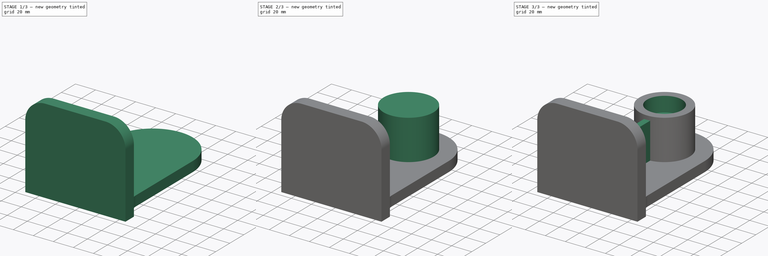
[diagram: build sequence overview — one tinted view per stage of 3, left to right]
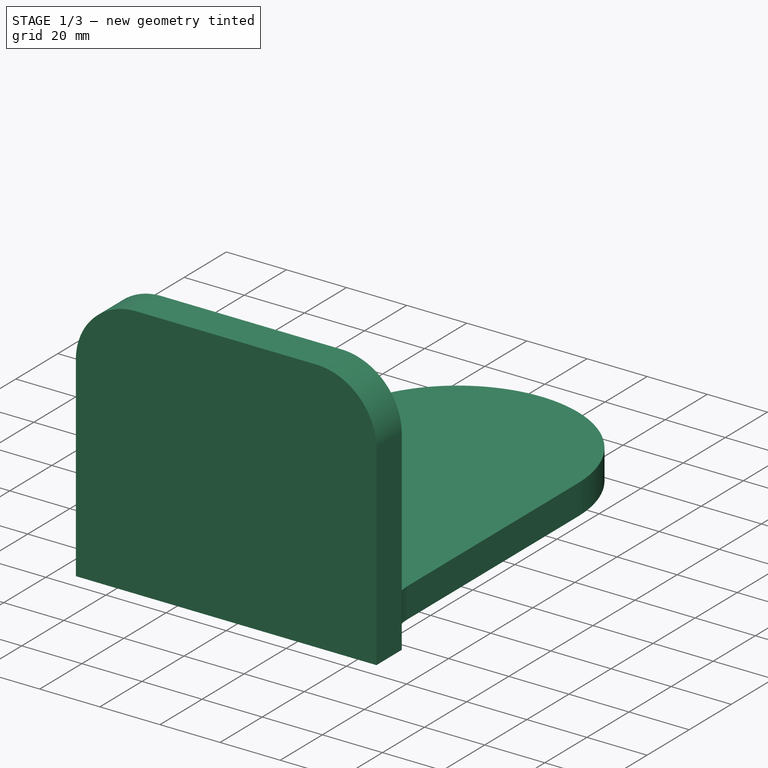
[diagram: stage 1 of 3 — iso view after this stage's code; geometry added in this stage tinted green]
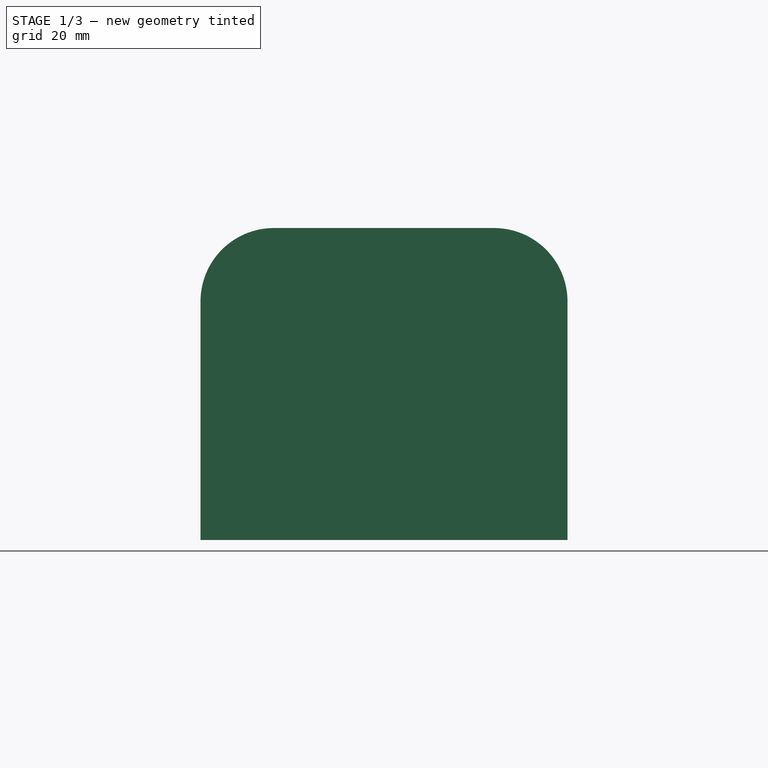
[diagram: stage 1 of 3 — front view after this stage's code; geometry added in this stage tinted green]
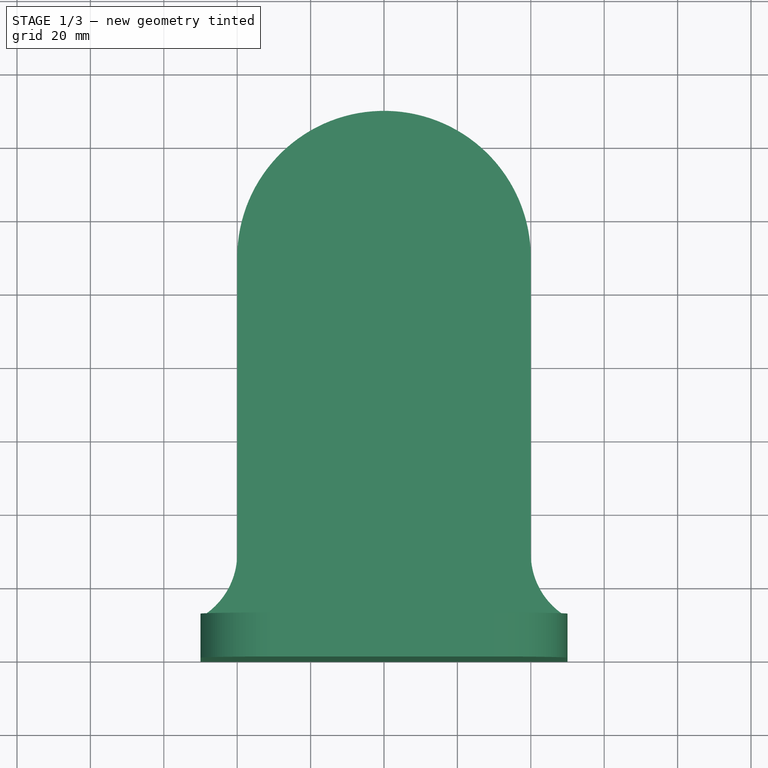
[diagram: stage 1 of 3 — top view after this stage's code; geometry added in this stage tinted green]
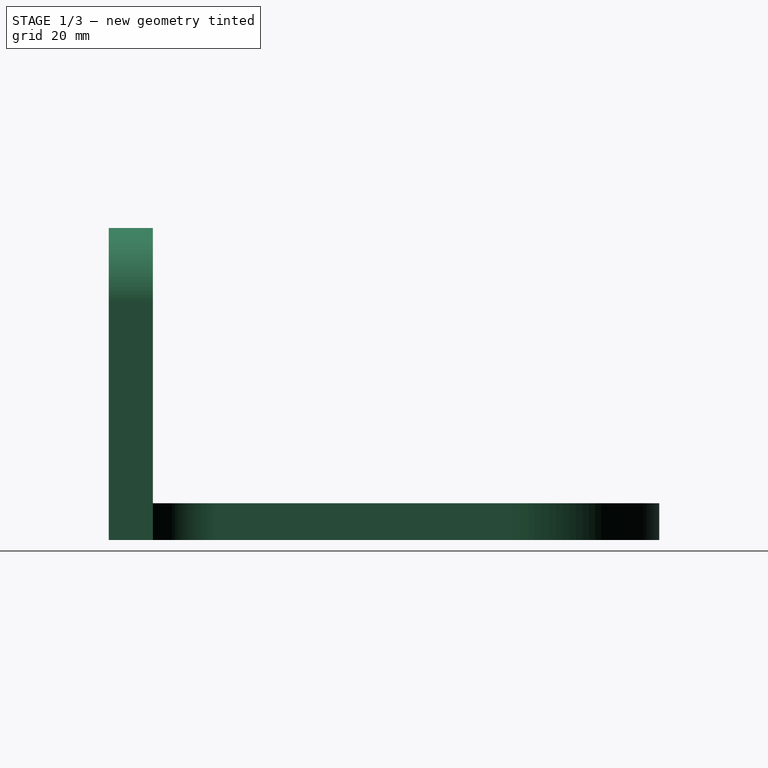
[diagram: stage 1 of 3 — right view after this stage's code; geometry added in this stage tinted green]
FCSTD DOCUMENT  (FreeCAD 1.1R42340 (Git))
Label: 22-T-53-TOMBSTONE_L
License: Creative Commons Attribution-NonCommercial-ShareAlike 4.0
LicenseURL: https://creativecommons.org/licenses/by-nc-sa/4.0/
objects: Sketcher::SketchObject×4, PartDesign::Pad×4, App::Point×1, PartDesign::Hole×1, PartDesign::Body×1, App::TextDocument×1
note: 24 computed .brp shape members not serialized (recipe doc carries the construction recipe); baked Part::Feature solids carry a one-line shape summary decoded from their .brp

FEATURE [App::Point] Origin001
  Role = Origin
FEATURE [Sketcher::SketchObject] Sketch
  ArcFitTolerance = 1e-06
  AttachmentSupport = -> [Origin]
  ExternalTypes = [0]
  FullyConstrained = true
  MakeInternals = false
  MapMode = 5
  sketch-geometry (9):
    g0: LineSegment StartX=-50 StartY=0 StartZ=0 EndX=50 EndY=0 EndZ=0
    g1: LineSegment StartX=50 StartY=0 StartZ=0 EndX=50 EndY=12 EndZ=0
    g2: LineSegment StartX=40 StartY=29.3205 StartZ=0 EndX=40 EndY=110 EndZ=0
    g3: ArcOfCircle CenterX=0 CenterY=110 CenterZ=0 NormalX=0 NormalY=0 NormalZ=1 AngleXU=0 Radius=40 StartAngle=0 EndAngle=3.14159
    g4: LineSegment StartX=-40 StartY=110 StartZ=0 EndX=-40 EndY=29.3205 EndZ=0
    g5: LineSegment StartX=-50 StartY=12 StartZ=0 EndX=-50 EndY=0 EndZ=0
    g6: GeomPoint X=0 Y=150 Z=0
    g7: ArcOfCircle CenterX=60 CenterY=29.3205 CenterZ=0 NormalX=0 NormalY=0 NormalZ=1 AngleXU=0 Radius=20 StartAngle=3.14159 EndAngle=4.18879
    g8: ArcOfCircle CenterX=-60 CenterY=29.3205 CenterZ=0 NormalX=0 NormalY=0 NormalZ=1 AngleXU=0 Radius=20 StartAngle=5.23599 EndAngle=6.28319
  constraints (25):
    c: PointOnObject(g0,g-1)
    c: PointOnObject(g0,g-1)
    c: Coincident(g0,g1)
    c: Vertical(g1)
    c: Vertical(g2)
    c: Tangent(g2,g3) = -1.5708
    c: Tangent(g3,g4) = -1.5708
    c: Coincident(g5,g0)
    c: Vertical(g5)
    c: Equal(g5,g1)
    c: Equal(g4,g2)
    c: Vertical(g4)
    c: PointOnObject(g3,g-2)
    c: Radius(g3) = 40
    c: PointOnObject(g6,g3)
    c: Distance(g6,g-1) = 150
    c: PointOnObject(g6,g-2)
    c: DistanceX(g0,g0) = 100
    c: Distance(g1,g1) = 12
    c: Coincident(g7,g1)
    c: Radius(g7) = 20
    c: Tangent(g7,g2) = 1.5708
    c: Coincident(g8,g5)
    c: Equal(g8,g7)
    c: Tangent(g8,g4) = 1.5708
FEATURE [PartDesign::Pad] Pad
  Direction = (0,0,1)
  Length = 10
  Length2 = 10
  Profile = -> Sketch
  ReferenceAxis = -> Sketch [N_Axis]
  Refine = true
  Suppressed = false
  Type = 0
FEATURE [Sketcher::SketchObject] Sketch001
  ArcFitTolerance = 1e-06
  AttachmentSupport = -> [Pad]
  ExternalGeometry = -> [Pad]
  ExternalTypes = [0]
  FullyConstrained = true
  MakeInternals = false
  MapMode = 5
  Placement = pos=(0,0,0) rot=(1,0,0;1.5708rad)
  sketch-geometry (5):
    g0: LineSegment StartX=-50 StartY=0 StartZ=0 EndX=-50 EndY=65 EndZ=0
    g1: ArcOfCircle CenterX=-30 CenterY=65 CenterZ=0 NormalX=0 NormalY=0 NormalZ=1 AngleXU=0 Radius=20 StartAngle=1.5708 EndAngle=3.14159
    g2: LineSegment StartX=-30 StartY=85 StartZ=0 EndX=30 EndY=85 EndZ=0
    g3: ArcOfCircle CenterX=30 CenterY=65 CenterZ=0 NormalX=0 NormalY=0 NormalZ=1 AngleXU=0 Radius=20 StartAngle=1e-16 EndAngle=1.5708
    g4: LineSegment StartX=50 StartY=65 StartZ=0 EndX=50 EndY=0 EndZ=0
  constraints (12):
    c: Coincident(g-3,g0)
    c: Vertical(g0)
    c: Tangent(g0,g1) = 1.5708
    c: Horizontal(g2)
    c: Tangent(g2,g3) = 1.5708
    c: Tangent(g3,g4) = 1.5708
    c: Equal(g1,g3)
    c: Radius(g3) = 20
    c: Vertical(g4)
    c: Coincident(g4,g-3)
    c: Tangent(g2,g1) = 1.5708
    c: DistanceY(g-1,g1) = 85
FEATURE [PartDesign::Pad] Pad001
  BaseFeature = -> Pad
  Direction = (0,-1,2e-16)
  Length = 12
  Length2 = 10
  Profile = -> Sketch001
  ReferenceAxis = -> Sketch001 [N_Axis]
  Refine = true
  Reversed = true
  Suppressed = false
  Type = 0
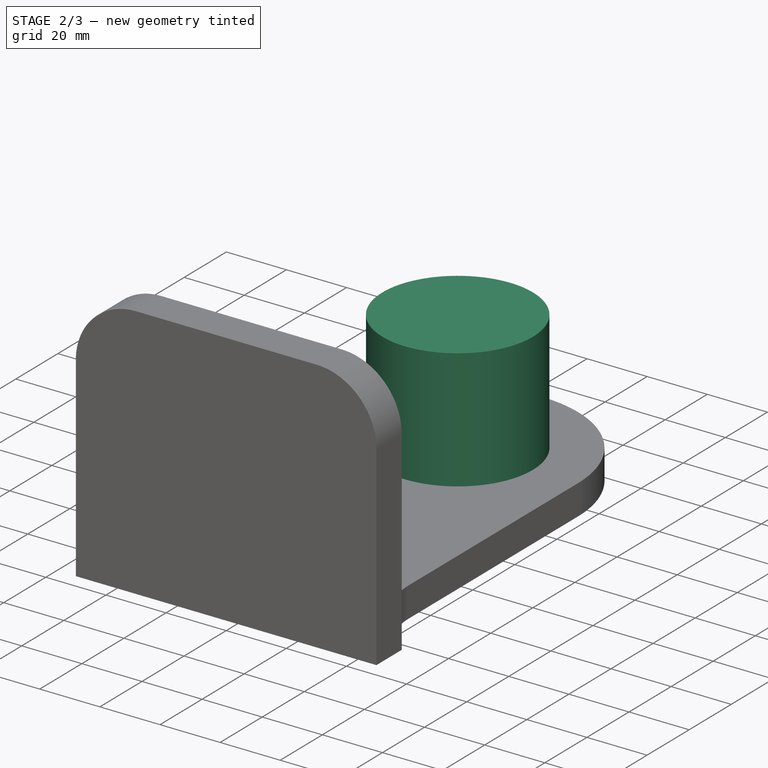
[diagram: stage 2 of 3 — iso view after this stage's code; geometry added in this stage tinted green]
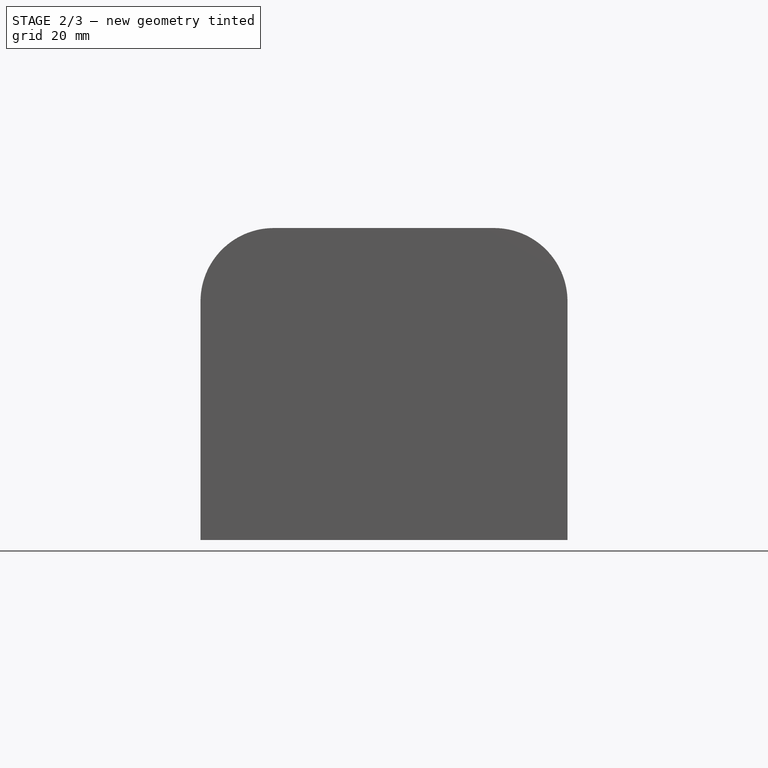
[diagram: stage 2 of 3 — front view after this stage's code; geometry added in this stage tinted green]
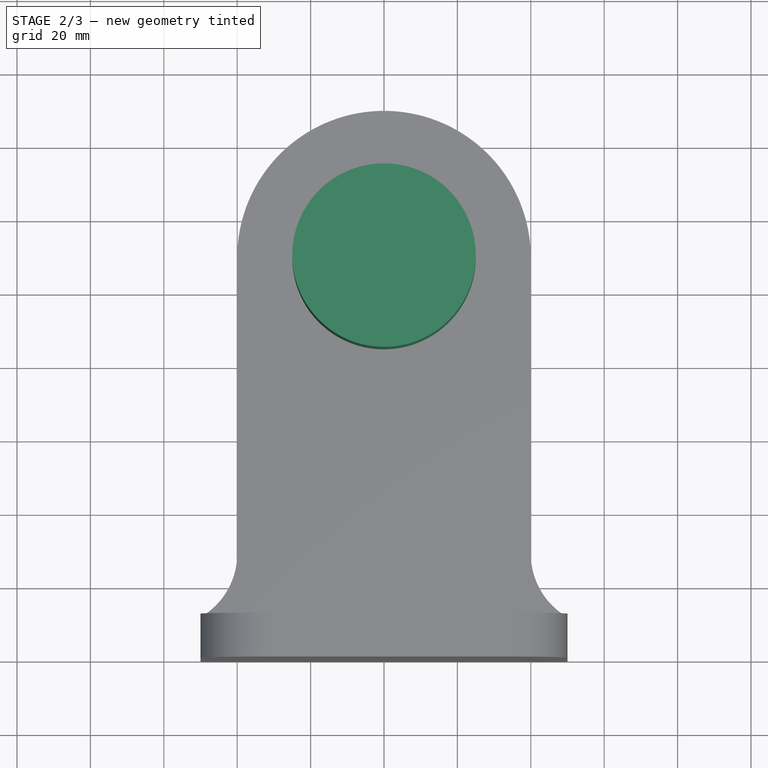
[diagram: stage 2 of 3 — top view after this stage's code; geometry added in this stage tinted green]
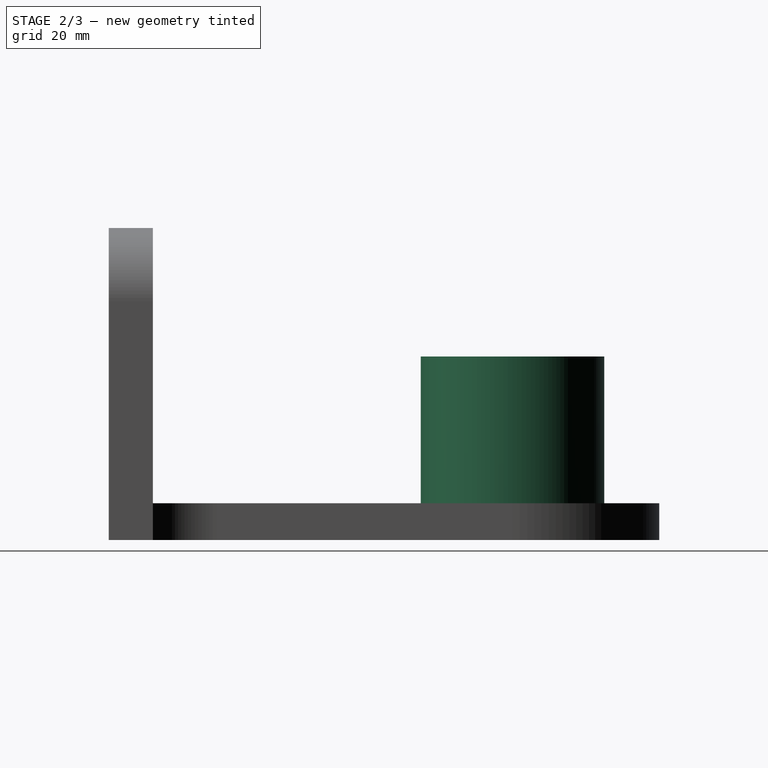
[diagram: stage 2 of 3 — right view after this stage's code; geometry added in this stage tinted green]
FEATURE [Sketcher::SketchObject] Sketch002
  ArcFitTolerance = 1e-06
  AttachmentSupport = -> [Pad001]
  ExternalGeometry = -> [Pad001]
  ExternalTypes = [0]
  FullyConstrained = true
  MakeInternals = false
  MapMode = 5
  Placement = pos=(0,0,0) rot=(1,0,0;3.14159rad)
  sketch-geometry (1):
    g0: Circle CenterX=0 CenterY=-110 CenterZ=0 NormalX=0 NormalY=0 NormalZ=1 AngleXU=0 Radius=25
  constraints (2):
    c: Coincident(g0,g-3)
    c: Diameter(g0) = 50
FEATURE [PartDesign::Pad] Pad002
  BaseFeature = -> Pad001
  Direction = (0,0,-1)
  Length = 50
  Length2 = 10
  Profile = -> Sketch002
  ReferenceAxis = -> Sketch002 [N_Axis]
  Refine = true
  Reversed = true
  Suppressed = false
  Type = 0
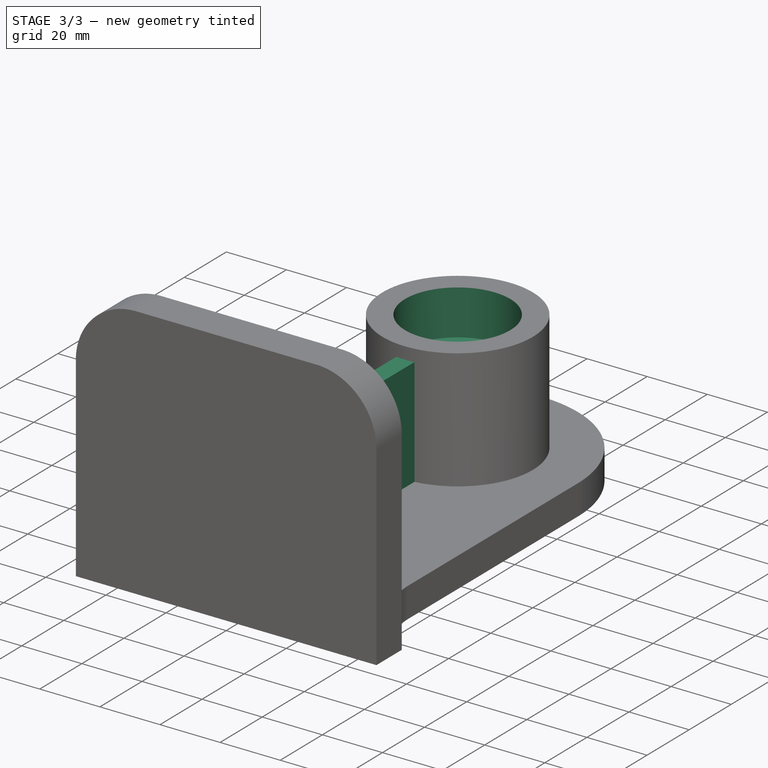
[diagram: stage 3 of 3 — iso view after this stage's code; geometry added in this stage tinted green]
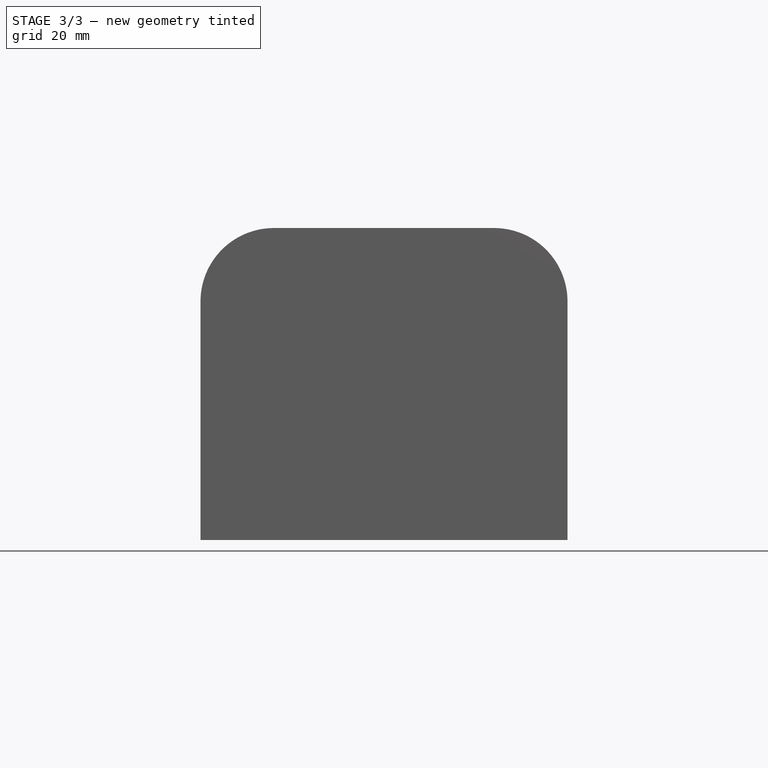
[diagram: stage 3 of 3 — front view after this stage's code; geometry added in this stage tinted green]
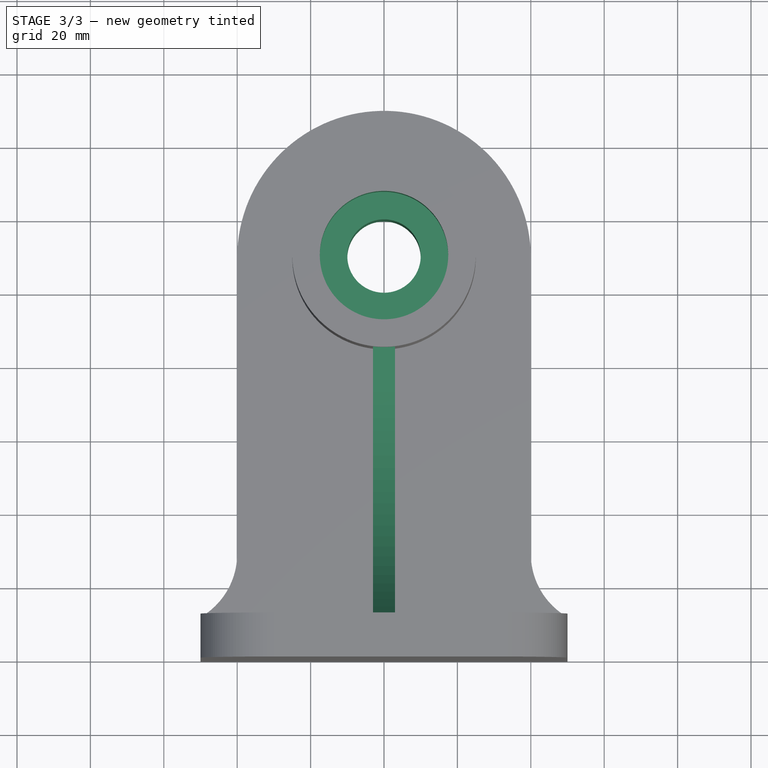
[diagram: stage 3 of 3 — top view after this stage's code; geometry added in this stage tinted green]
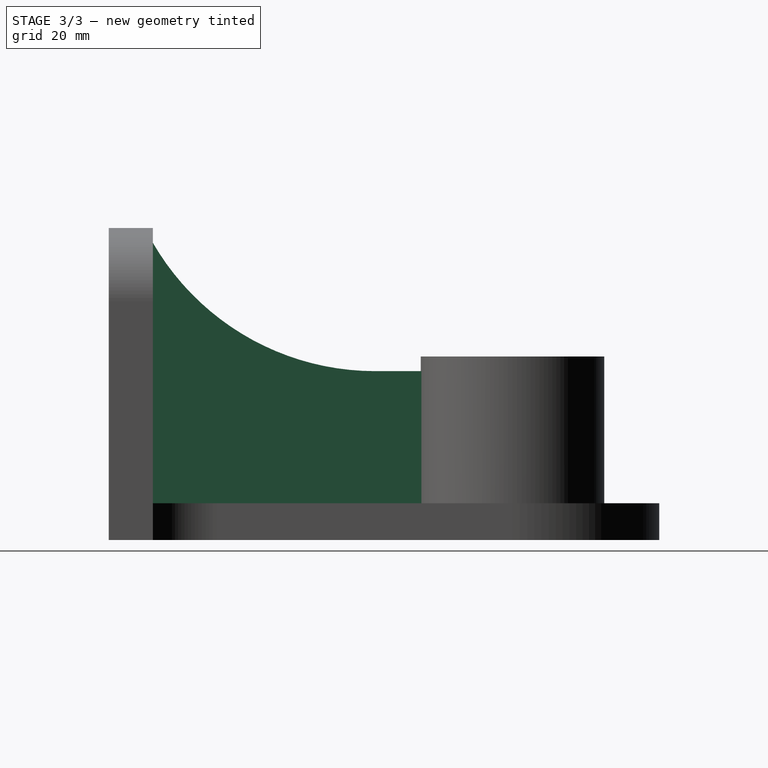
[diagram: stage 3 of 3 — right view after this stage's code; geometry added in this stage tinted green]
FEATURE [PartDesign::Hole] Hole
  BaseFeature = -> Pad002
  BaseProfileType = 7
  CustomThreadClearance = 0
  Depth = 402.586
  DepthType = 1
  Diameter = 20
  DrillForDepth = false
  DrillPoint = 1
  DrillPointAngle = 118
  HoleCutCountersinkAngle = 90
  HoleCutCustomValues = false
  HoleCutDepth = 15
  HoleCutDiameter = 35
  HoleCutType = 1
  ModelThread = false
  Profile = -> Pad002 [Face15]
  Refine = true
  Suppressed = false
  Tapered = false
  TaperedAngle = 90
  ThreadClass = 0
  ThreadDepth = 402.586
  ThreadDepthType = 0
  ThreadDiameter = 20
  ThreadDirection = 0
  ThreadFit = 0
  ThreadSize = 0
  ThreadType = 0
  Threaded = false
  UseCustomThreadClearance = false
FEATURE [Sketcher::SketchObject] Sketch003
  ArcFitTolerance = 1e-06
  AttachmentSupport = -> [Origin]
  ExternalGeometry = -> [Hole]
  ExternalTypes = [0,0,0,0]
  FullyConstrained = true
  MakeInternals = false
  MapMode = 5
  Placement = pos=(0,0,0) rot=(0.57735,0.57735,0.57735;2.0944rad)
  sketch-geometry (5):
    g0: LineSegment StartX=92.5 StartY=46 StartZ=0 EndX=72.6218 EndY=46 EndZ=0
    g1: ArcOfCircle CenterX=72.6218 CenterY=116 CenterZ=0 NormalX=0 NormalY=0 NormalZ=1 AngleXU=0 Radius=70 StartAngle=3.66519 EndAngle=4.71239
    g2: LineSegment StartX=12 StartY=81 StartZ=0 EndX=12 EndY=10 EndZ=0
    g3: LineSegment StartX=12 StartY=10 StartZ=0 EndX=92.5 EndY=10 EndZ=0
    g4: LineSegment StartX=92.5 StartY=10 StartZ=0 EndX=92.5 EndY=46 EndZ=0
  constraints (15):
    c: Horizontal(g0)
    c: Tangent(g0,g1) = 1.5708
    c: Coincident(g1,g2)
    c: Coincident(g2,g3)
    c: Horizontal(g3)
    c: Radius(g1) = 70
    c: Vertical(g2)
    c: Vertical(g1,g-3)
    c: DistanceY(g1,g-3) = 4
    c: PointOnObject(g3,g-4)
    c: Vertical(g0,g-5)
    c: Coincident(g4,g3)
    c: Coincident(g4,g0)
    c: Vertical(g4)
    c: DistanceY(g0,g-6) = 4
FEATURE [PartDesign::Pad] Pad003
  BaseFeature = -> Hole
  Direction = (1,0,0)
  Length = 6
  Length2 = 10
  Midplane = true
  Profile = -> Sketch003
  ReferenceAxis = -> Sketch003 [N_Axis]
  Refine = true
  Suppressed = false
  Type = 0
FEATURE [PartDesign::Body] Body
  AllowCompound = true
  Group = -> [Sketch,Pad,Sketch001,Pad001,Sketch002,Pad002,Hole,Sketch003,Pad003]
  Origin = -> Origin
  Tip = -> Pad003
FEATURE [App::TextDocument] Text_document  label="README"
  Text = 7800 kg/m3	\n\n2.1612kg\n\nOK
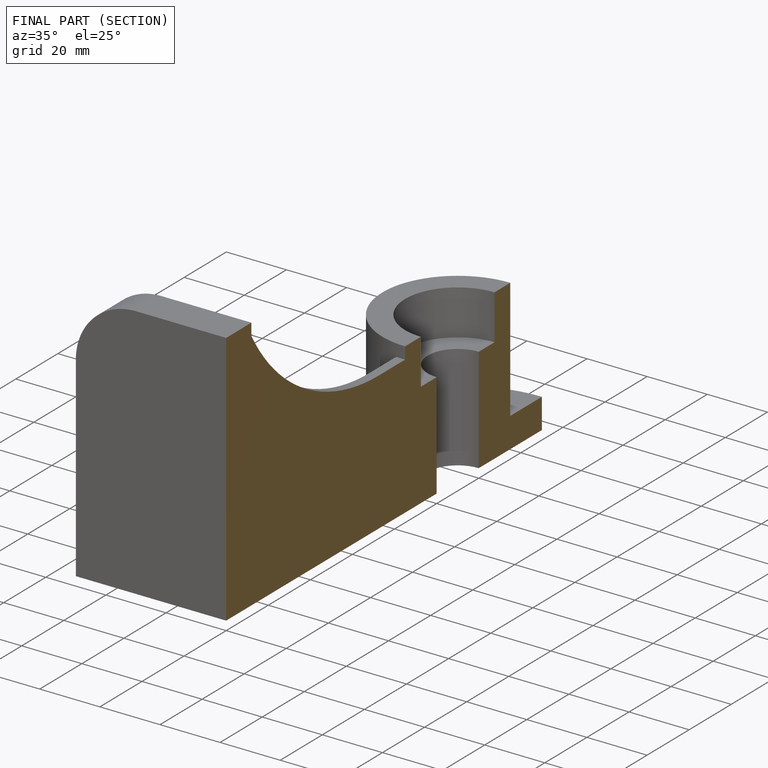
[diagram: finished part — half-section view (interior)]
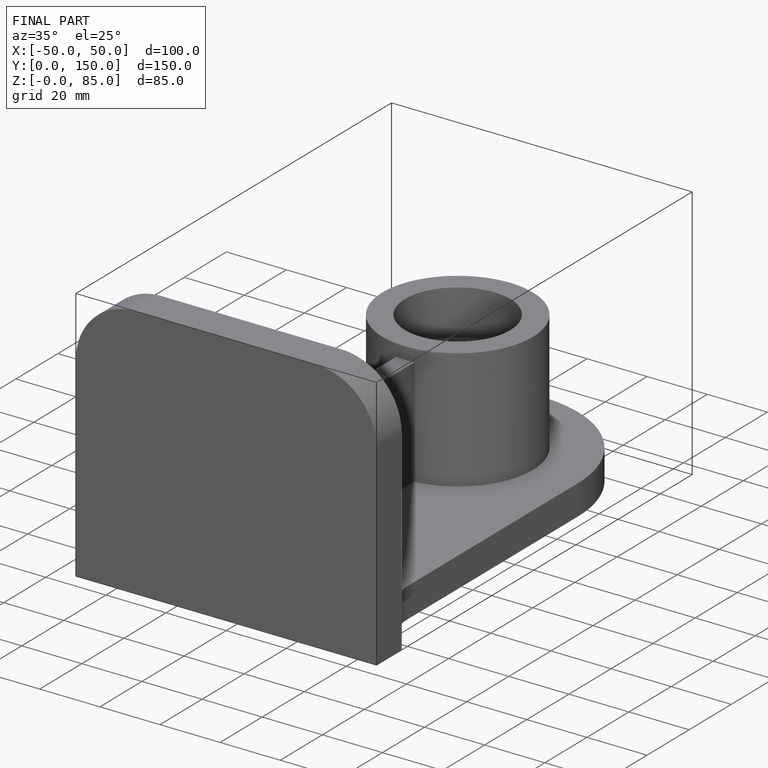
[diagram: finished part — iso view with bounding-box wireframe]
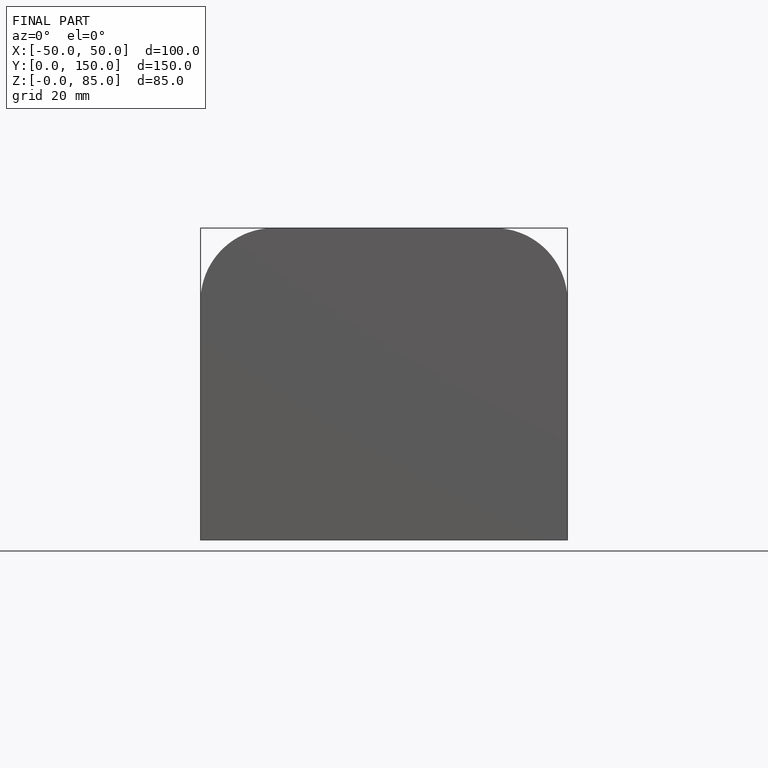
[diagram: finished part — front view with bounding-box wireframe]
